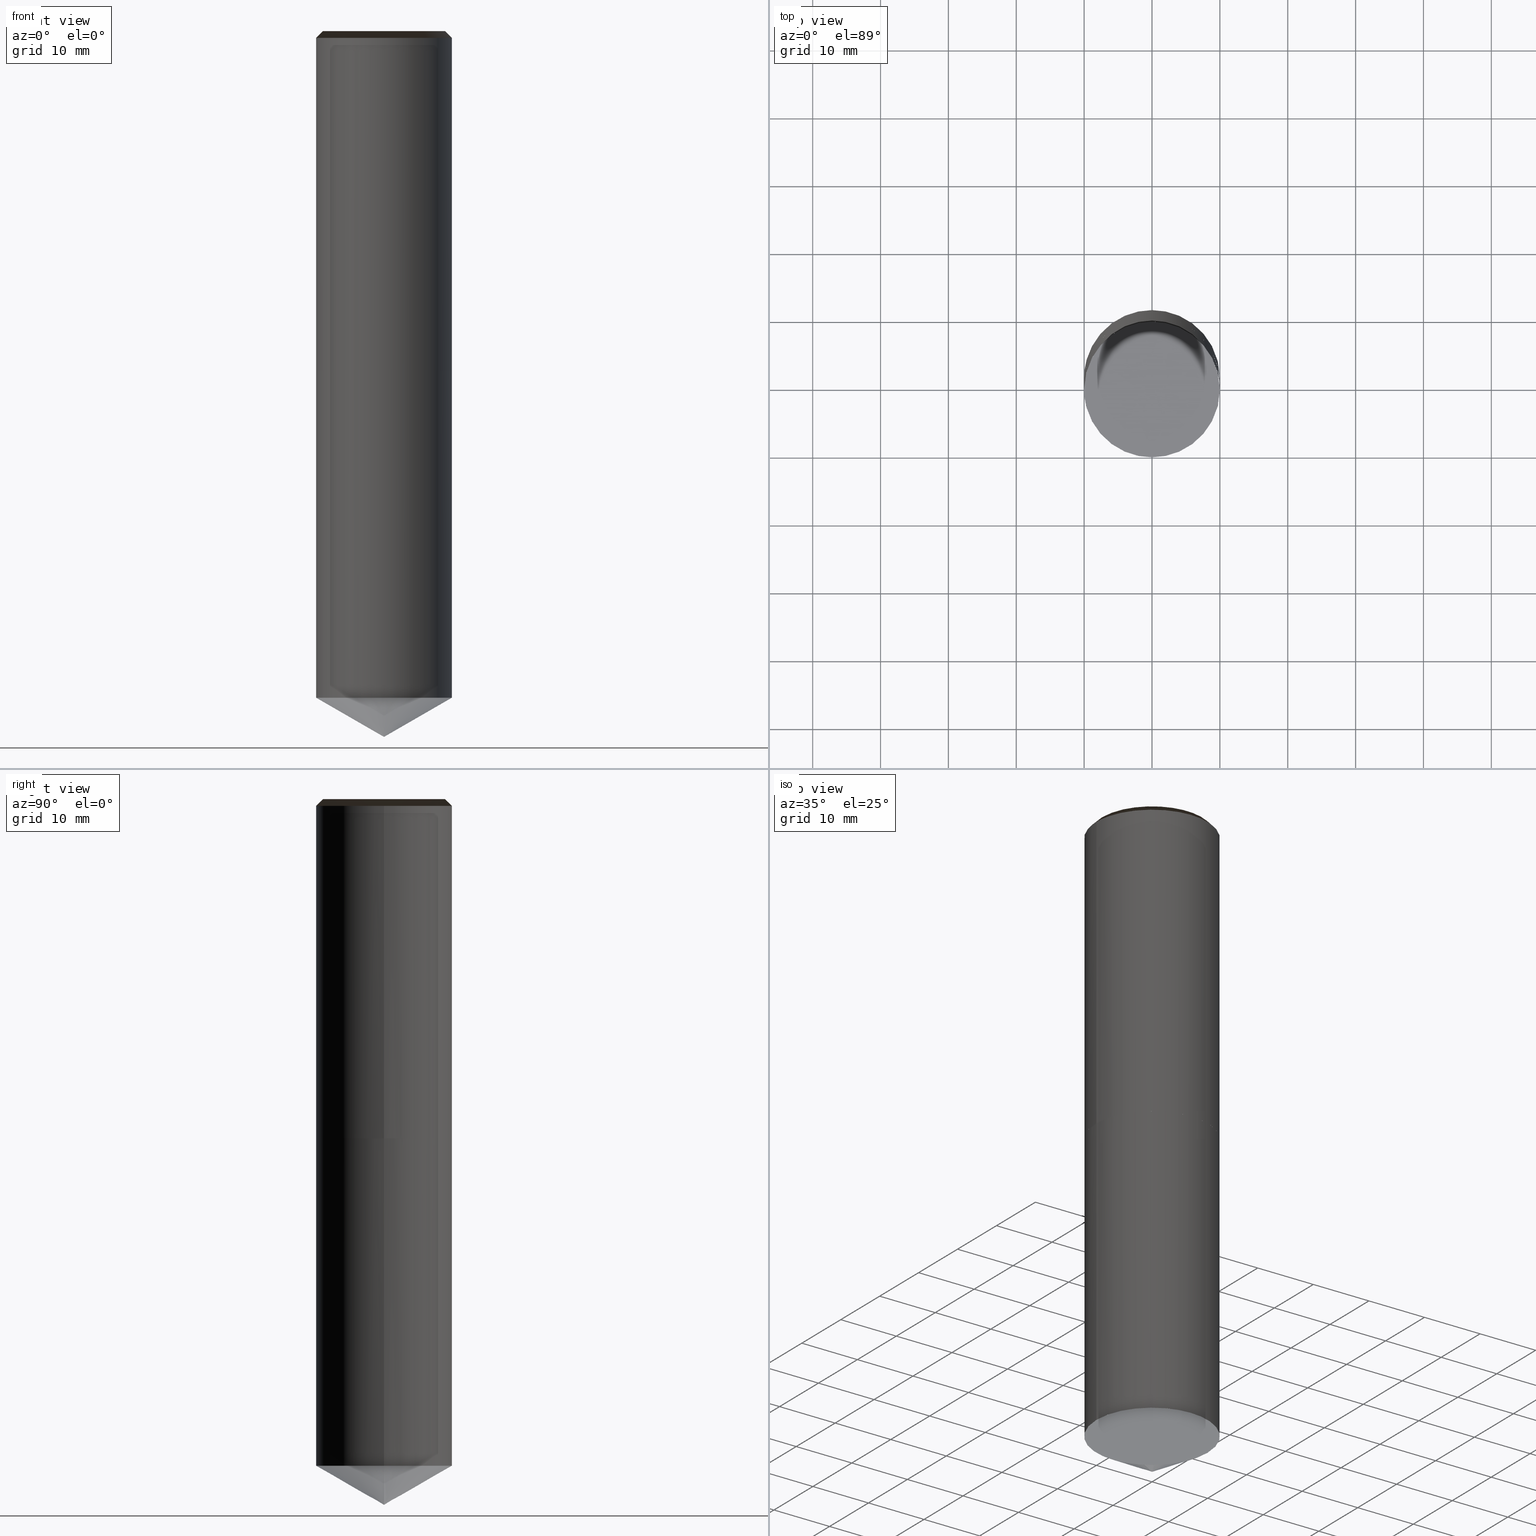
[diagram: canonical four-view strip — front | top / right | iso, engineering-drawing reading convention]
A machine part, canonical four-view strip (front | top / right | iso — engineering-drawing reading convention). The complete STEP part file that produces these views, byte-faithful:
ISO-10303-21;
HEADER;
/* Generated by ISBE GmbH (www.isbe.de) */
/* OPTION: using custom schema-name function */

FILE_DESCRIPTION(
/* description */ (''),
/* implementation_level */ '2;1');

FILE_NAME(
/*name*/ 'eXobj0000_18220F21',
/*time_stamp*/'2024-7-14T21:33:23',
/*author*/ ('ISBE GmbH'),
/*organization*/ ('ISBE GmbH'),
/*preprocessor_version*/ 'STEP IO v1.0',
/*originating_system*/ '',
/*authorisation*/ '');

FILE_SCHEMA (('AUTOMOTIVE_DESIGN'));
ENDSEC;

DATA;
#10=SHAPE_DEFINITION_REPRESENTATION(#11,#57);
#11=PRODUCT_DEFINITION_SHAPE('Document','',#13);
#12=PRODUCT_DEFINITION_CONTEXT('3D Mechanical Parts',#17,'design');
#13=PRODUCT_DEFINITION('A','First version',#14,#12);
#14=PRODUCT_DEFINITION_FORMATION_WITH_SPECIFIED_SOURCE('A','First version',#19,.MADE.);
#15=PRODUCT_RELATED_PRODUCT_CATEGORY('tool','tool',(#19));
#16=APPLICATION_PROTOCOL_DEFINITION('Draft International Standard', 'automotive_design',1999,#17);
#17=APPLICATION_CONTEXT('data for automotive mechanical design processes');
#18=PRODUCT_CONTEXT('3D Mechanical Parts',#17,'mechanical');
#19=PRODUCT('Document','Document','ISBE converted to STEP',(#18));
#20=(
LENGTH_UNIT()
NAMED_UNIT(*)
SI_UNIT(.MILLI.,.METRE.)
);
#21=(
NAMED_UNIT(*)
PLANE_ANGLE_UNIT()
SI_UNIT($,.RADIAN.)
);
#22=DIMENSIONAL_EXPONENTS(0.,0.,0.,0.,0.,0.,0.);
#23=PLANE_ANGLE_MEASURE_WITH_UNIT(PLANE_ANGLE_MEASURE(0.01745329252),#21);
#24=(
CONVERSION_BASED_UNIT('DEGREES',#23)
NAMED_UNIT(#22)
PLANE_ANGLE_UNIT()
);
#25=(
NAMED_UNIT(*)
SI_UNIT($,.STERADIAN.)
SOLID_ANGLE_UNIT()
);
#26=UNCERTAINTY_MEASURE_WITH_UNIT(LENGTH_MEASURE(0.001),#20, 'DISTANCE_ACCURACY_VALUE', 'Maximum model space distance between geometric entities at asserted connectivities');
#27=(
GEOMETRIC_REPRESENTATION_CONTEXT(3)
GLOBAL_UNCERTAINTY_ASSIGNED_CONTEXT((#26))
GLOBAL_UNIT_ASSIGNED_CONTEXT((#25,#24,#20))
REPRESENTATION_CONTEXT('ID1','3D')
);
#28=CARTESIAN_POINT('',(0.0,0.0,0.0));
#29=DIRECTION('',(1.0,0.0,0.0));
#30=DIRECTION('',(0.0,0.0,1.0));
#31=AXIS2_PLACEMENT_3D('',#28,#30,#29);
#32=CARTESIAN_POINT('',(0.0,0.0,0.0));
#33=DIRECTION('',(1.0,0.0,0.0));
#34=DIRECTION('',(0.0,0.0,1.0));
#35=AXIS2_PLACEMENT_3D('',#32,#34,#33);
#36=CARTESIAN_POINT('',(0.0,0.0,0.0));
#37=DIRECTION('',(1.0,0.0,0.0));
#38=DIRECTION('',(0.0,0.0,1.0));
#39=AXIS2_PLACEMENT_3D('',#36,#38,#37);
#40=CARTESIAN_POINT('',(0.0,0.0,0.0));
#41=DIRECTION('',(0.0,0.0,1.0));
#42=DIRECTION('',(1.0,0.0,0.0));
#43=AXIS2_PLACEMENT_3D('MCS',#40,#42,#41);
#44=CARTESIAN_POINT('',(0.0,0.0,50.0));
#45=DIRECTION('',(0.0,0.0,1.0));
#46=DIRECTION('',(1.0,0.0,0.0));
#47=AXIS2_PLACEMENT_3D('PCS',#44,#46,#45);
#48=CARTESIAN_POINT('',(0.0,0.0,-54.0));
#49=DIRECTION('',(0.0,0.0,1.0));
#50=DIRECTION('',(1.0,0.0,0.0));
#51=AXIS2_PLACEMENT_3D('CIP',#48,#50,#49);
#52=CARTESIAN_POINT('',(0.0,-10.0,-54.0));
#53=DIRECTION('',(0.0,0.0,1.0));
#54=DIRECTION('',(1.0,0.0,0.0));
#55=AXIS2_PLACEMENT_3D('CRP',#52,#54,#53);
#57=SHAPE_REPRESENTATION('Document',(#31,#35,#39,#43,#47,#51,#55),#27);
#58=DIRECTION('',(1.0,0.0,0.0));
#59=DIRECTION('',(0.0,0.0,1.0));
#60=CARTESIAN_POINT('',(-0.099994999875,-0.001,-53.942264973081));
#61=CARTESIAN_POINT('',(-0.097954285592,-0.20506122449,-53.824444279009));
#62=CARTESIAN_POINT('',(-0.095913571309,-0.40912244898,-53.706623584936));
#63=CARTESIAN_POINT('',(-0.093872857026,-0.613183673469,-53.588802890864));
#64=CARTESIAN_POINT('',(-0.091832142742,-0.817244897959,-53.470982196792));
#65=CARTESIAN_POINT('',(-0.089791428459,-1.021306122449,-53.353161502719));
#66=CARTESIAN_POINT('',(-0.087750714176,-1.225367346939,-53.235340808647));
#67=CARTESIAN_POINT('',(-0.085709999893,-1.429428571429,-53.117520114575));
#68=CARTESIAN_POINT('',(-0.08366928561,-1.633489795918,-52.999699420502));
#69=CARTESIAN_POINT('',(-0.081628571327,-1.837551020408,-52.88187872643));
#70=CARTESIAN_POINT('',(-0.079587857043,-2.041612244898,-52.764058032358));
#71=CARTESIAN_POINT('',(-0.07754714276,-2.245673469388,-52.646237338285));
#72=CARTESIAN_POINT('',(-0.075506428477,-2.449734693878,-52.528416644213));
#73=CARTESIAN_POINT('',(-0.073465714194,-2.653795918367,-52.410595950141));
#74=CARTESIAN_POINT('',(-0.071424999911,-2.857857142857,-52.292775256068));
#75=CARTESIAN_POINT('',(-0.069384285628,-3.061918367347,-52.174954561996));
#76=CARTESIAN_POINT('',(-0.067343571344,-3.265979591837,-52.057133867924));
#77=CARTESIAN_POINT('',(-0.065302857061,-3.470040816327,-51.939313173851));
#78=CARTESIAN_POINT('',(-0.063262142778,-3.674102040816,-51.821492479779));
#79=CARTESIAN_POINT('',(-0.061221428495,-3.878163265306,-51.703671785707));
#80=CARTESIAN_POINT('',(-0.059180714212,-4.082224489796,-51.585851091634));
#81=CARTESIAN_POINT('',(-0.057139999929,-4.286285714286,-51.468030397562));
#82=CARTESIAN_POINT('',(-0.055099285645,-4.490346938776,-51.35020970349));
#83=CARTESIAN_POINT('',(-0.053058571362,-4.694408163265,-51.232389009417));
#84=CARTESIAN_POINT('',(-0.051017857079,-4.898469387755,-51.114568315345));
#85=CARTESIAN_POINT('',(-0.048977142796,-5.102530612245,-50.996747621273));
#86=CARTESIAN_POINT('',(-0.046936428513,-5.306591836735,-50.8789269272));
#87=CARTESIAN_POINT('',(-0.04489571423,-5.510653061224,-50.761106233128));
#88=CARTESIAN_POINT('',(-0.042854999946,-5.714714285714,-50.643285539056));
#89=CARTESIAN_POINT('',(-0.040814285663,-5.918775510204,-50.525464844983));
#90=CARTESIAN_POINT('',(-0.03877357138,-6.122836734694,-50.407644150911));
#91=CARTESIAN_POINT('',(-0.036732857097,-6.326897959184,-50.289823456839));
#92=CARTESIAN_POINT('',(-0.034692142814,-6.530959183673,-50.172002762766));
#93=CARTESIAN_POINT('',(-0.032651428531,-6.735020408163,-50.054182068694));
#94=CARTESIAN_POINT('',(-0.030610714247,-6.939081632653,-49.936361374622));
#95=CARTESIAN_POINT('',(-0.028569999964,-7.143142857143,-49.818540680549));
#96=CARTESIAN_POINT('',(-0.026529285681,-7.347204081633,-49.700719986477));
#97=CARTESIAN_POINT('',(-0.024488571398,-7.551265306122,-49.582899292405));
#98=CARTESIAN_POINT('',(-0.022447857115,-7.755326530612,-49.465078598332));
#99=CARTESIAN_POINT('',(-0.020407142832,-7.959387755102,-49.34725790426));
#100=CARTESIAN_POINT('',(-0.018366428548,-8.163448979592,-49.229437210188));
#101=CARTESIAN_POINT('',(-0.016325714265,-8.367510204082,-49.111616516115));
#102=CARTESIAN_POINT('',(-0.014284999982,-8.571571428571,-48.993795822043));
#103=CARTESIAN_POINT('',(-0.012244285699,-8.775632653061,-48.875975127971));
#104=CARTESIAN_POINT('',(-0.010203571416,-8.979693877551,-48.758154433898));
#105=CARTESIAN_POINT('',(-0.008162857133,-9.183755102041,-48.640333739826));
#106=CARTESIAN_POINT('',(-0.00612214285,-9.387816326531,-48.522513045754));
#107=CARTESIAN_POINT('',(-0.004081428566,-9.59187755102,-48.404692351681));
#108=CARTESIAN_POINT('',(-0.002040714283,-9.79593877551,-48.286871657609));
#109=CARTESIAN_POINT('',(0.0,-10.0,-48.169050963537));
#110=CARTESIAN_POINT('',(0.001,-0.099994999875,-53.942264973081));
#111=CARTESIAN_POINT('',(0.20506122449,-0.097954285592,-53.824444279009));
#112=CARTESIAN_POINT('',(0.40912244898,-0.095913571309,-53.706623584936));
#113=CARTESIAN_POINT('',(0.613183673469,-0.093872857026,-53.588802890864));
#114=CARTESIAN_POINT('',(0.817244897959,-0.091832142742,-53.470982196792));
#115=CARTESIAN_POINT('',(1.021306122449,-0.089791428459,-53.353161502719));
#116=CARTESIAN_POINT('',(1.225367346939,-0.087750714176,-53.235340808647));
#117=CARTESIAN_POINT('',(1.429428571429,-0.085709999893,-53.117520114575));
#118=CARTESIAN_POINT('',(1.633489795918,-0.08366928561,-52.999699420502));
#119=CARTESIAN_POINT('',(1.837551020408,-0.081628571327,-52.88187872643));
#120=CARTESIAN_POINT('',(2.041612244898,-0.079587857043,-52.764058032358));
#121=CARTESIAN_POINT('',(2.245673469388,-0.07754714276,-52.646237338285));
#122=CARTESIAN_POINT('',(2.449734693878,-0.075506428477,-52.528416644213));
#123=CARTESIAN_POINT('',(2.653795918367,-0.073465714194,-52.410595950141));
#124=CARTESIAN_POINT('',(2.857857142857,-0.071424999911,-52.292775256068));
#125=CARTESIAN_POINT('',(3.061918367347,-0.069384285628,-52.174954561996));
#126=CARTESIAN_POINT('',(3.265979591837,-0.067343571344,-52.057133867924));
#127=CARTESIAN_POINT('',(3.470040816327,-0.065302857061,-51.939313173851));
#128=CARTESIAN_POINT('',(3.674102040816,-0.063262142778,-51.821492479779));
#129=CARTESIAN_POINT('',(3.878163265306,-0.061221428495,-51.703671785707));
#130=CARTESIAN_POINT('',(4.082224489796,-0.059180714212,-51.585851091634));
#131=CARTESIAN_POINT('',(4.286285714286,-0.057139999929,-51.468030397562));
#132=CARTESIAN_POINT('',(4.490346938776,-0.055099285645,-51.35020970349));
#133=CARTESIAN_POINT('',(4.694408163265,-0.053058571362,-51.232389009417));
#134=CARTESIAN_POINT('',(4.898469387755,-0.051017857079,-51.114568315345));
#135=CARTESIAN_POINT('',(5.102530612245,-0.048977142796,-50.996747621273));
#136=CARTESIAN_POINT('',(5.306591836735,-0.046936428513,-50.8789269272));
#137=CARTESIAN_POINT('',(5.510653061224,-0.04489571423,-50.761106233128));
#138=CARTESIAN_POINT('',(5.714714285714,-0.042854999946,-50.643285539056));
#139=CARTESIAN_POINT('',(5.918775510204,-0.040814285663,-50.525464844983));
#140=CARTESIAN_POINT('',(6.122836734694,-0.03877357138,-50.407644150911));
#141=CARTESIAN_POINT('',(6.326897959184,-0.036732857097,-50.289823456839));
#142=CARTESIAN_POINT('',(6.530959183673,-0.034692142814,-50.172002762766));
#143=CARTESIAN_POINT('',(6.735020408163,-0.032651428531,-50.054182068694));
#144=CARTESIAN_POINT('',(6.939081632653,-0.030610714247,-49.936361374622));
#145=CARTESIAN_POINT('',(7.143142857143,-0.028569999964,-49.818540680549));
#146=CARTESIAN_POINT('',(7.347204081633,-0.026529285681,-49.700719986477));
#147=CARTESIAN_POINT('',(7.551265306122,-0.024488571398,-49.582899292405));
#148=CARTESIAN_POINT('',(7.755326530612,-0.022447857115,-49.465078598332));
#149=CARTESIAN_POINT('',(7.959387755102,-0.020407142832,-49.34725790426));
#150=CARTESIAN_POINT('',(8.163448979592,-0.018366428548,-49.229437210188));
#151=CARTESIAN_POINT('',(8.367510204082,-0.016325714265,-49.111616516115));
#152=CARTESIAN_POINT('',(8.571571428571,-0.014284999982,-48.993795822043));
#153=CARTESIAN_POINT('',(8.775632653061,-0.012244285699,-48.875975127971));
#154=CARTESIAN_POINT('',(8.979693877551,-0.010203571416,-48.758154433898));
#155=CARTESIAN_POINT('',(9.183755102041,-0.008162857133,-48.640333739826));
#156=CARTESIAN_POINT('',(9.387816326531,-0.006122142849,-48.522513045754));
#157=CARTESIAN_POINT('',(9.59187755102,-0.004081428566,-48.404692351681));
#158=CARTESIAN_POINT('',(9.79593877551,-0.002040714283,-48.286871657609));
#159=CARTESIAN_POINT('',(10.0,0.0,-48.169050963537));
#160=CARTESIAN_POINT('',(0.099994999875,0.001,-53.942264973081));
#161=CARTESIAN_POINT('',(0.097954285592,0.20506122449,-53.824444279009));
#162=CARTESIAN_POINT('',(0.095913571309,0.40912244898,-53.706623584936));
#163=CARTESIAN_POINT('',(0.093872857026,0.613183673469,-53.588802890864));
#164=CARTESIAN_POINT('',(0.091832142742,0.817244897959,-53.470982196792));
#165=CARTESIAN_POINT('',(0.089791428459,1.021306122449,-53.353161502719));
#166=CARTESIAN_POINT('',(0.087750714176,1.225367346939,-53.235340808647));
#167=CARTESIAN_POINT('',(0.085709999893,1.429428571429,-53.117520114575));
#168=CARTESIAN_POINT('',(0.08366928561,1.633489795918,-52.999699420502));
#169=CARTESIAN_POINT('',(0.081628571327,1.837551020408,-52.88187872643));
#170=CARTESIAN_POINT('',(0.079587857043,2.041612244898,-52.764058032358));
#171=CARTESIAN_POINT('',(0.07754714276,2.245673469388,-52.646237338285));
#172=CARTESIAN_POINT('',(0.075506428477,2.449734693878,-52.528416644213));
#173=CARTESIAN_POINT('',(0.073465714194,2.653795918367,-52.410595950141));
#174=CARTESIAN_POINT('',(0.071424999911,2.857857142857,-52.292775256068));
#175=CARTESIAN_POINT('',(0.069384285628,3.061918367347,-52.174954561996));
#176=CARTESIAN_POINT('',(0.067343571344,3.265979591837,-52.057133867924));
#177=CARTESIAN_POINT('',(0.065302857061,3.470040816327,-51.939313173851));
#178=CARTESIAN_POINT('',(0.063262142778,3.674102040816,-51.821492479779));
#179=CARTESIAN_POINT('',(0.061221428495,3.878163265306,-51.703671785707));
#180=CARTESIAN_POINT('',(0.059180714212,4.082224489796,-51.585851091634));
#181=CARTESIAN_POINT('',(0.057139999929,4.286285714286,-51.468030397562));
#182=CARTESIAN_POINT('',(0.055099285645,4.490346938776,-51.35020970349));
#183=CARTESIAN_POINT('',(0.053058571362,4.694408163265,-51.232389009417));
#184=CARTESIAN_POINT('',(0.051017857079,4.898469387755,-51.114568315345));
#185=CARTESIAN_POINT('',(0.048977142796,5.102530612245,-50.996747621273));
#186=CARTESIAN_POINT('',(0.046936428513,5.306591836735,-50.8789269272));
#187=CARTESIAN_POINT('',(0.04489571423,5.510653061224,-50.761106233128));
#188=CARTESIAN_POINT('',(0.042854999946,5.714714285714,-50.643285539056));
#189=CARTESIAN_POINT('',(0.040814285663,5.918775510204,-50.525464844983));
#190=CARTESIAN_POINT('',(0.03877357138,6.122836734694,-50.407644150911));
#191=CARTESIAN_POINT('',(0.036732857097,6.326897959184,-50.289823456839));
#192=CARTESIAN_POINT('',(0.034692142814,6.530959183673,-50.172002762766));
#193=CARTESIAN_POINT('',(0.032651428531,6.735020408163,-50.054182068694));
#194=CARTESIAN_POINT('',(0.030610714247,6.939081632653,-49.936361374622));
#195=CARTESIAN_POINT('',(0.028569999964,7.143142857143,-49.818540680549));
#196=CARTESIAN_POINT('',(0.026529285681,7.347204081633,-49.700719986477));
#197=CARTESIAN_POINT('',(0.024488571398,7.551265306122,-49.582899292405));
#198=CARTESIAN_POINT('',(0.022447857115,7.755326530612,-49.465078598332));
#199=CARTESIAN_POINT('',(0.020407142832,7.959387755102,-49.34725790426));
#200=CARTESIAN_POINT('',(0.018366428549,8.163448979592,-49.229437210188));
#201=CARTESIAN_POINT('',(0.016325714265,8.367510204082,-49.111616516115));
#202=CARTESIAN_POINT('',(0.014284999982,8.571571428571,-48.993795822043));
#203=CARTESIAN_POINT('',(0.012244285699,8.775632653061,-48.875975127971));
#204=CARTESIAN_POINT('',(0.010203571416,8.979693877551,-48.758154433898));
#205=CARTESIAN_POINT('',(0.008162857133,9.183755102041,-48.640333739826));
#206=CARTESIAN_POINT('',(0.00612214285,9.387816326531,-48.522513045754));
#207=CARTESIAN_POINT('',(0.004081428566,9.59187755102,-48.404692351681));
#208=CARTESIAN_POINT('',(0.002040714283,9.79593877551,-48.286871657609));
#209=CARTESIAN_POINT('',(0.0,10.0,-48.169050963537));
#210=CARTESIAN_POINT('',(-0.001,0.099994999875,-53.942264973081));
#211=CARTESIAN_POINT('',(-0.20506122449,0.097954285592,-53.824444279009));
#212=CARTESIAN_POINT('',(-0.40912244898,0.095913571309,-53.706623584936));
#213=CARTESIAN_POINT('',(-0.613183673469,0.093872857026,-53.588802890864));
#214=CARTESIAN_POINT('',(-0.817244897959,0.091832142742,-53.470982196792));
#215=CARTESIAN_POINT('',(-1.021306122449,0.089791428459,-53.353161502719));
#216=CARTESIAN_POINT('',(-1.225367346939,0.087750714176,-53.235340808647));
#217=CARTESIAN_POINT('',(-1.429428571429,0.085709999893,-53.117520114575));
#218=CARTESIAN_POINT('',(-1.633489795918,0.08366928561,-52.999699420502));
#219=CARTESIAN_POINT('',(-1.837551020408,0.081628571327,-52.88187872643));
#220=CARTESIAN_POINT('',(-2.041612244898,0.079587857043,-52.764058032358));
#221=CARTESIAN_POINT('',(-2.245673469388,0.07754714276,-52.646237338285));
#222=CARTESIAN_POINT('',(-2.449734693878,0.075506428477,-52.528416644213));
#223=CARTESIAN_POINT('',(-2.653795918367,0.073465714194,-52.410595950141));
#224=CARTESIAN_POINT('',(-2.857857142857,0.071424999911,-52.292775256068));
#225=CARTESIAN_POINT('',(-3.061918367347,0.069384285628,-52.174954561996));
#226=CARTESIAN_POINT('',(-3.265979591837,0.067343571344,-52.057133867924));
#227=CARTESIAN_POINT('',(-3.470040816327,0.065302857061,-51.939313173851));
#228=CARTESIAN_POINT('',(-3.674102040816,0.063262142778,-51.821492479779));
#229=CARTESIAN_POINT('',(-3.878163265306,0.061221428495,-51.703671785707));
#230=CARTESIAN_POINT('',(-4.082224489796,0.059180714212,-51.585851091634));
#231=CARTESIAN_POINT('',(-4.286285714286,0.057139999929,-51.468030397562));
#232=CARTESIAN_POINT('',(-4.490346938776,0.055099285645,-51.35020970349));
#233=CARTESIAN_POINT('',(-4.694408163265,0.053058571362,-51.232389009417));
#234=CARTESIAN_POINT('',(-4.898469387755,0.051017857079,-51.114568315345));
#235=CARTESIAN_POINT('',(-5.102530612245,0.048977142796,-50.996747621273));
#236=CARTESIAN_POINT('',(-5.306591836735,0.046936428513,-50.8789269272));
#237=CARTESIAN_POINT('',(-5.510653061224,0.04489571423,-50.761106233128));
#238=CARTESIAN_POINT('',(-5.714714285714,0.042854999946,-50.643285539056));
#239=CARTESIAN_POINT('',(-5.918775510204,0.040814285663,-50.525464844983));
#240=CARTESIAN_POINT('',(-6.122836734694,0.03877357138,-50.407644150911));
#241=CARTESIAN_POINT('',(-6.326897959184,0.036732857097,-50.289823456839));
#242=CARTESIAN_POINT('',(-6.530959183673,0.034692142814,-50.172002762766));
#243=CARTESIAN_POINT('',(-6.735020408163,0.032651428531,-50.054182068694));
#244=CARTESIAN_POINT('',(-6.939081632653,0.030610714247,-49.936361374622));
#245=CARTESIAN_POINT('',(-7.143142857143,0.028569999964,-49.818540680549));
#246=CARTESIAN_POINT('',(-7.347204081633,0.026529285681,-49.700719986477));
#247=CARTESIAN_POINT('',(-7.551265306122,0.024488571398,-49.582899292405));
#248=CARTESIAN_POINT('',(-7.755326530612,0.022447857115,-49.465078598332));
#249=CARTESIAN_POINT('',(-7.959387755102,0.020407142832,-49.34725790426));
#250=CARTESIAN_POINT('',(-8.163448979592,0.018366428548,-49.229437210188));
#251=CARTESIAN_POINT('',(-8.367510204082,0.016325714265,-49.111616516115));
#252=CARTESIAN_POINT('',(-8.571571428571,0.014284999982,-48.993795822043));
#253=CARTESIAN_POINT('',(-8.775632653061,0.012244285699,-48.875975127971));
#254=CARTESIAN_POINT('',(-8.979693877551,0.010203571416,-48.758154433898));
#255=CARTESIAN_POINT('',(-9.183755102041,0.008162857133,-48.640333739826));
#256=CARTESIAN_POINT('',(-9.387816326531,0.00612214285,-48.522513045754));
#257=CARTESIAN_POINT('',(-9.59187755102,0.004081428566,-48.404692351681));
#258=CARTESIAN_POINT('',(-9.79593877551,0.002040714283,-48.286871657609));
#259=CARTESIAN_POINT('',(-10.0,-0.0,-48.169050963537));
#260=CARTESIAN_POINT('',(0.0,0.0,-54.0));
#261=CARTESIAN_POINT('',(10.0,0.0,-48.226497308104));
#262=CARTESIAN_POINT('',(10.0,10.0,-48.226497308104));
#263=CARTESIAN_POINT('',(0.0,10.0,-48.226497308104));
#264=CARTESIAN_POINT('',(-10.0,10.0,-48.226497308104));
#265=CARTESIAN_POINT('',(-10.0,0.0,-48.226497308104));
#266=CARTESIAN_POINT('',(10.0,0.0,-48.225));
#267=CARTESIAN_POINT('',(10.0,10.0,-48.225));
#268=CARTESIAN_POINT('',(0.0,10.0,-48.225));
#269=CARTESIAN_POINT('',(-10.0,10.0,-48.225));
#270=CARTESIAN_POINT('',(-10.0,0.0,-48.225));
#271=CARTESIAN_POINT('',(0.0,0.0,-48.225));
#272=CARTESIAN_POINT('',(-10.0,-10.0,-48.226497308104));
#273=CARTESIAN_POINT('',(0.0,-10.0,-48.226497308104));
#274=CARTESIAN_POINT('',(10.0,-10.0,-48.226497308104));
#275=CARTESIAN_POINT('',(-10.0,-10.0,-48.225));
#276=CARTESIAN_POINT('',(0.0,-10.0,-48.225));
#277=CARTESIAN_POINT('',(10.0,-10.0,-48.225));
#278=CARTESIAN_POINT('',(10.0,0.0,0.0));
#279=CARTESIAN_POINT('',(10.0,10.0,0.0));
#280=CARTESIAN_POINT('',(0.0,10.0,0.0));
#281=CARTESIAN_POINT('',(-10.0,10.0,0.0));
#282=CARTESIAN_POINT('',(-10.0,0.0,0.0));
#283=CARTESIAN_POINT('',(10.0,0.0,49.0));
#284=CARTESIAN_POINT('',(10.0,10.0,49.0));
#285=CARTESIAN_POINT('',(0.0,10.0,49.0));
#286=CARTESIAN_POINT('',(-10.0,10.0,49.0));
#287=CARTESIAN_POINT('',(-10.0,0.0,49.0));
#288=CARTESIAN_POINT('',(9.0,0.0,50.0));
#289=CARTESIAN_POINT('',(9.0,9.0,50.0));
#290=CARTESIAN_POINT('',(0.0,9.0,50.0));
#291=CARTESIAN_POINT('',(-9.0,9.0,50.0));
#292=CARTESIAN_POINT('',(-9.0,0.0,50.0));
#293=CARTESIAN_POINT('',(0.0,0.0,50.0));
#294=CARTESIAN_POINT('',(-10.0,-10.0,0.0));
#295=CARTESIAN_POINT('',(0.0,-10.0,0.0));
#296=CARTESIAN_POINT('',(10.0,-10.0,0.0));
#297=CARTESIAN_POINT('',(-10.0,-10.0,49.0));
#298=CARTESIAN_POINT('',(0.0,-10.0,49.0));
#299=CARTESIAN_POINT('',(10.0,-10.0,49.0));
#300=CARTESIAN_POINT('',(-9.0,-9.0,50.0));
#301=CARTESIAN_POINT('',(0.0,-9.0,50.0));
#302=CARTESIAN_POINT('',(9.0,-9.0,50.0));
#303=(
BOUNDED_CURVE()
B_SPLINE_CURVE(1,(#60,#61,#62,#63,#64,#65,#66,#67,#68,#69,#70,#71,#72,#73,#74,#75,#76,#77,#78,#79,#80,#81,#82,#83,#84,#85,#86,#87,#88,#89,#90,#91,#92,#93,#94,#95,#96,#97,#98,#99,#100,#101,#102,#103,#104,#105,#106,#107,#108,#109),.UNSPECIFIED.,.F.,.F.)
B_SPLINE_CURVE_WITH_KNOTS((2,1,1,1,1,1,1,1,1,1,1,1,1,1,1,1,1,1,1,1,1,1,1,1,1,1,1,1,1,1,1,1,1,1,1,1,1,1,1,1,1,1,1,1,1,1,1,1,1,2),
(0.0,0.020408163265,0.040816326531,0.061224489796,0.081632653061,0.102040816327,0.122448979592,0.142857142857,0.163265306122,0.183673469388,0.204081632653,0.224489795918,0.244897959184,0.265306122449,0.285714285714,0.30612244898,0.326530612245,0.34693877551,0.367346938776,0.387755102041,0.408163265306,0.428571428571,0.448979591837,0.469387755102,0.489795918367,0.510204081633,0.530612244898,0.551020408163,0.571428571429,0.591836734694,0.612244897959,0.632653061224,0.65306122449,0.673469387755,0.69387755102,0.714285714286,0.734693877551,0.755102040816,0.775510204082,0.795918367347,0.816326530612,0.836734693878,0.857142857143,0.877551020408,0.897959183673,0.918367346939,0.938775510204,0.959183673469,0.979591836735,1.0),.UNSPECIFIED.)
CURVE()
GEOMETRIC_REPRESENTATION_ITEM()
RATIONAL_B_SPLINE_CURVE((1.0,1.0,1.0,1.0,1.0,1.0,1.0,1.0,1.0,1.0,1.0,1.0,1.0,1.0,1.0,1.0,1.0,1.0,1.0,1.0,1.0,1.0,1.0,1.0,1.0,1.0,1.0,1.0,1.0,1.0,1.0,1.0,1.0,1.0,1.0,1.0,1.0,1.0,1.0,1.0,1.0,1.0,1.0,1.0,1.0,1.0,1.0,1.0,1.0,1.0))
REPRESENTATION_ITEM('')
);
#304=(
BOUNDED_CURVE()
B_SPLINE_CURVE(1,(#110,#111,#112,#113,#114,#115,#116,#117,#118,#119,#120,#121,#122,#123,#124,#125,#126,#127,#128,#129,#130,#131,#132,#133,#134,#135,#136,#137,#138,#139,#140,#141,#142,#143,#144,#145,#146,#147,#148,#149,#150,#151,#152,#153,#154,#155,#156,#157,#158,#159),.UNSPECIFIED.,.F.,.F.)
B_SPLINE_CURVE_WITH_KNOTS((2,1,1,1,1,1,1,1,1,1,1,1,1,1,1,1,1,1,1,1,1,1,1,1,1,1,1,1,1,1,1,1,1,1,1,1,1,1,1,1,1,1,1,1,1,1,1,1,1,2),
(0.0,0.020408163265,0.040816326531,0.061224489796,0.081632653061,0.102040816327,0.122448979592,0.142857142857,0.163265306122,0.183673469388,0.204081632653,0.224489795918,0.244897959184,0.265306122449,0.285714285714,0.30612244898,0.326530612245,0.34693877551,0.367346938776,0.387755102041,0.408163265306,0.428571428571,0.448979591837,0.469387755102,0.489795918367,0.510204081633,0.530612244898,0.551020408163,0.571428571429,0.591836734694,0.612244897959,0.632653061224,0.65306122449,0.673469387755,0.69387755102,0.714285714286,0.734693877551,0.755102040816,0.775510204082,0.795918367347,0.816326530612,0.836734693878,0.857142857143,0.877551020408,0.897959183673,0.918367346939,0.938775510204,0.959183673469,0.979591836735,1.0),.UNSPECIFIED.)
CURVE()
GEOMETRIC_REPRESENTATION_ITEM()
RATIONAL_B_SPLINE_CURVE((1.0,1.0,1.0,1.0,1.0,1.0,1.0,1.0,1.0,1.0,1.0,1.0,1.0,1.0,1.0,1.0,1.0,1.0,1.0,1.0,1.0,1.0,1.0,1.0,1.0,1.0,1.0,1.0,1.0,1.0,1.0,1.0,1.0,1.0,1.0,1.0,1.0,1.0,1.0,1.0,1.0,1.0,1.0,1.0,1.0,1.0,1.0,1.0,1.0,1.0))
REPRESENTATION_ITEM('')
);
#305=(
BOUNDED_CURVE()
B_SPLINE_CURVE(1,(#160,#161,#162,#163,#164,#165,#166,#167,#168,#169,#170,#171,#172,#173,#174,#175,#176,#177,#178,#179,#180,#181,#182,#183,#184,#185,#186,#187,#188,#189,#190,#191,#192,#193,#194,#195,#196,#197,#198,#199,#200,#201,#202,#203,#204,#205,#206,#207,#208,#209),.UNSPECIFIED.,.F.,.F.)
B_SPLINE_CURVE_WITH_KNOTS((2,1,1,1,1,1,1,1,1,1,1,1,1,1,1,1,1,1,1,1,1,1,1,1,1,1,1,1,1,1,1,1,1,1,1,1,1,1,1,1,1,1,1,1,1,1,1,1,1,2),
(0.0,0.020408163265,0.040816326531,0.061224489796,0.081632653061,0.102040816327,0.122448979592,0.142857142857,0.163265306122,0.183673469388,0.204081632653,0.224489795918,0.244897959184,0.265306122449,0.285714285714,0.30612244898,0.326530612245,0.34693877551,0.367346938776,0.387755102041,0.408163265306,0.428571428571,0.448979591837,0.469387755102,0.489795918367,0.510204081633,0.530612244898,0.551020408163,0.571428571429,0.591836734694,0.612244897959,0.632653061224,0.65306122449,0.673469387755,0.69387755102,0.714285714286,0.734693877551,0.755102040816,0.775510204082,0.795918367347,0.816326530612,0.836734693878,0.857142857143,0.877551020408,0.897959183673,0.918367346939,0.938775510204,0.959183673469,0.979591836735,1.0),.UNSPECIFIED.)
CURVE()
GEOMETRIC_REPRESENTATION_ITEM()
RATIONAL_B_SPLINE_CURVE((1.0,1.0,1.0,1.0,1.0,1.0,1.0,1.0,1.0,1.0,1.0,1.0,1.0,1.0,1.0,1.0,1.0,1.0,1.0,1.0,1.0,1.0,1.0,1.0,1.0,1.0,1.0,1.0,1.0,1.0,1.0,1.0,1.0,1.0,1.0,1.0,1.0,1.0,1.0,1.0,1.0,1.0,1.0,1.0,1.0,1.0,1.0,1.0,1.0,1.0))
REPRESENTATION_ITEM('')
);
#306=(
BOUNDED_CURVE()
B_SPLINE_CURVE(1,(#210,#211,#212,#213,#214,#215,#216,#217,#218,#219,#220,#221,#222,#223,#224,#225,#226,#227,#228,#229,#230,#231,#232,#233,#234,#235,#236,#237,#238,#239,#240,#241,#242,#243,#244,#245,#246,#247,#248,#249,#250,#251,#252,#253,#254,#255,#256,#257,#258,#259),.UNSPECIFIED.,.F.,.F.)
B_SPLINE_CURVE_WITH_KNOTS((2,1,1,1,1,1,1,1,1,1,1,1,1,1,1,1,1,1,1,1,1,1,1,1,1,1,1,1,1,1,1,1,1,1,1,1,1,1,1,1,1,1,1,1,1,1,1,1,1,2),
(0.0,0.020408163265,0.040816326531,0.061224489796,0.081632653061,0.102040816327,0.122448979592,0.142857142857,0.163265306122,0.183673469388,0.204081632653,0.224489795918,0.244897959184,0.265306122449,0.285714285714,0.30612244898,0.326530612245,0.34693877551,0.367346938776,0.387755102041,0.408163265306,0.428571428571,0.448979591837,0.469387755102,0.489795918367,0.510204081633,0.530612244898,0.551020408163,0.571428571429,0.591836734694,0.612244897959,0.632653061224,0.65306122449,0.673469387755,0.69387755102,0.714285714286,0.734693877551,0.755102040816,0.775510204082,0.795918367347,0.816326530612,0.836734693878,0.857142857143,0.877551020408,0.897959183673,0.918367346939,0.938775510204,0.959183673469,0.979591836735,1.0),.UNSPECIFIED.)
CURVE()
GEOMETRIC_REPRESENTATION_ITEM()
RATIONAL_B_SPLINE_CURVE((1.0,1.0,1.0,1.0,1.0,1.0,1.0,1.0,1.0,1.0,1.0,1.0,1.0,1.0,1.0,1.0,1.0,1.0,1.0,1.0,1.0,1.0,1.0,1.0,1.0,1.0,1.0,1.0,1.0,1.0,1.0,1.0,1.0,1.0,1.0,1.0,1.0,1.0,1.0,1.0,1.0,1.0,1.0,1.0,1.0,1.0,1.0,1.0,1.0,1.0))
REPRESENTATION_ITEM('')
);
#307=SHAPE_REPRESENTATION_RELATIONSHIP('','',#57,#308);
#308=GEOMETRICALLY_BOUNDED_WIREFRAME_SHAPE_REPRESENTATION('Curves',(#309,#31),#27);
#309=GEOMETRIC_CURVE_SET('CurveSet',(#303,#304,#305,#306));
#310=(
BOUNDED_SURFACE()
B_SPLINE_SURFACE(1,2,(
(#260,#260,#260,#260,#260),
(#261,#262,#263,#264,#265)
), .UNSPECIFIED.,.F.,.F.,.F.)
B_SPLINE_SURFACE_WITH_KNOTS((2,2),(3,2,3),(
0.0,1.0),(
0.0,0.5,1.0), .UNSPECIFIED.)
GEOMETRIC_REPRESENTATION_ITEM()
RATIONAL_B_SPLINE_SURFACE(((1.0,0.707106781187,1.0,0.707106781187,1.0),
(1.0,0.707106781187,1.0,0.707106781187,1.0)
))
REPRESENTATION_ITEM('')
SURFACE()
);
#311=(
BOUNDED_CURVE()
B_SPLINE_CURVE(2,(#261,#262,#263,#264,#265),.UNSPECIFIED.,.F.,.F.)
B_SPLINE_CURVE_WITH_KNOTS((3,2,3),
(0.0,0.5,1.0),.UNSPECIFIED.)
CURVE()
GEOMETRIC_REPRESENTATION_ITEM()
RATIONAL_B_SPLINE_CURVE((1.0,0.707106781187,1.0,0.707106781187,1.0))
REPRESENTATION_ITEM('')
);
#312=(
BOUNDED_CURVE()
B_SPLINE_CURVE(1,(#265,#260),.UNSPECIFIED.,.F.,.F.)
B_SPLINE_CURVE_WITH_KNOTS((2,2),
(0.0,1.0),.UNSPECIFIED.)
CURVE()
GEOMETRIC_REPRESENTATION_ITEM()
RATIONAL_B_SPLINE_CURVE((1.0,1.0))
REPRESENTATION_ITEM('')
);
#313=(
BOUNDED_CURVE()
B_SPLINE_CURVE(1,(#260,#261),.UNSPECIFIED.,.F.,.F.)
B_SPLINE_CURVE_WITH_KNOTS((2,2),
(0.0,1.0),.UNSPECIFIED.)
CURVE()
GEOMETRIC_REPRESENTATION_ITEM()
RATIONAL_B_SPLINE_CURVE((1.0,1.0))
REPRESENTATION_ITEM('')
);
#314=VERTEX_POINT('',#260);
#315=VERTEX_POINT('',#261);
#316=VERTEX_POINT('',#265);
#317=EDGE_CURVE('',#315,#316,#311,.T.);
#318=EDGE_CURVE('',#316,#314,#312,.T.);
#319=EDGE_CURVE('',#314,#315,#313,.T.);
#320=ORIENTED_EDGE('',*,*,#317,.T.);
#321=ORIENTED_EDGE('',*,*,#318,.T.);
#322=ORIENTED_EDGE('',*,*,#319,.T.);
#323=EDGE_LOOP('',(#320,#321,#322));
#324=FACE_OUTER_BOUND('',#323,.T.);
#325=ADVANCED_FACE('',(#324),#310,.T.);
#326=(
BOUNDED_SURFACE()
B_SPLINE_SURFACE(1,2,(
(#261,#262,#263,#264,#265),
(#266,#267,#268,#269,#270)
), .UNSPECIFIED.,.F.,.F.,.F.)
B_SPLINE_SURFACE_WITH_KNOTS((2,2),(3,2,3),(
0.0,1.0),(
0.0,0.5,1.0), .UNSPECIFIED.)
GEOMETRIC_REPRESENTATION_ITEM()
RATIONAL_B_SPLINE_SURFACE(((1.0,0.707106781187,1.0,0.707106781187,1.0),
(1.0,0.707106781187,1.0,0.707106781187,1.0)
))
REPRESENTATION_ITEM('')
SURFACE()
);
#327=(
BOUNDED_CURVE()
B_SPLINE_CURVE(2,(#266,#267,#268,#269,#270),.UNSPECIFIED.,.F.,.F.)
B_SPLINE_CURVE_WITH_KNOTS((3,2,3),
(0.0,0.5,1.0),.UNSPECIFIED.)
CURVE()
GEOMETRIC_REPRESENTATION_ITEM()
RATIONAL_B_SPLINE_CURVE((1.0,0.707106781187,1.0,0.707106781187,1.0))
REPRESENTATION_ITEM('')
);
#328=(
BOUNDED_CURVE()
B_SPLINE_CURVE(1,(#270,#265),.UNSPECIFIED.,.F.,.F.)
B_SPLINE_CURVE_WITH_KNOTS((2,2),
(0.0,1.0),.UNSPECIFIED.)
CURVE()
GEOMETRIC_REPRESENTATION_ITEM()
RATIONAL_B_SPLINE_CURVE((1.0,1.0))
REPRESENTATION_ITEM('')
);
#329=(
BOUNDED_CURVE()
B_SPLINE_CURVE(2,(#265,#264,#263,#262,#261),.UNSPECIFIED.,.F.,.F.)
B_SPLINE_CURVE_WITH_KNOTS((3,2,3),
(0.0,0.5,1.0),.UNSPECIFIED.)
CURVE()
GEOMETRIC_REPRESENTATION_ITEM()
RATIONAL_B_SPLINE_CURVE((1.0,0.707106781187,1.0,0.707106781187,1.0))
REPRESENTATION_ITEM('')
);
#330=(
BOUNDED_CURVE()
B_SPLINE_CURVE(1,(#261,#266),.UNSPECIFIED.,.F.,.F.)
B_SPLINE_CURVE_WITH_KNOTS((2,2),
(0.0,1.0),.UNSPECIFIED.)
CURVE()
GEOMETRIC_REPRESENTATION_ITEM()
RATIONAL_B_SPLINE_CURVE((1.0,1.0))
REPRESENTATION_ITEM('')
);
#331=VERTEX_POINT('',#261);
#332=VERTEX_POINT('',#265);
#333=VERTEX_POINT('',#266);
#334=VERTEX_POINT('',#270);
#335=EDGE_CURVE('',#333,#334,#327,.T.);
#336=EDGE_CURVE('',#334,#332,#328,.T.);
#337=EDGE_CURVE('',#332,#331,#329,.T.);
#338=EDGE_CURVE('',#331,#333,#330,.T.);
#339=ORIENTED_EDGE('',*,*,#335,.T.);
#340=ORIENTED_EDGE('',*,*,#336,.T.);
#341=ORIENTED_EDGE('',*,*,#337,.T.);
#342=ORIENTED_EDGE('',*,*,#338,.T.);
#343=EDGE_LOOP('',(#339,#340,#341,#342));
#344=FACE_OUTER_BOUND('',#343,.T.);
#345=ADVANCED_FACE('',(#344),#326,.T.);
#346=(
BOUNDED_SURFACE()
B_SPLINE_SURFACE(1,2,(
(#266,#267,#268,#269,#270),
(#271,#271,#271,#271,#271)
), .UNSPECIFIED.,.F.,.F.,.F.)
B_SPLINE_SURFACE_WITH_KNOTS((2,2),(3,2,3),(
0.0,1.0),(
0.0,0.5,1.0), .UNSPECIFIED.)
GEOMETRIC_REPRESENTATION_ITEM()
RATIONAL_B_SPLINE_SURFACE(((1.0,0.707106781187,1.0,0.707106781187,1.0),
(1.0,0.707106781187,1.0,0.707106781187,1.0)
))
REPRESENTATION_ITEM('')
SURFACE()
);
#347=(
BOUNDED_CURVE()
B_SPLINE_CURVE(1,(#271,#266),.UNSPECIFIED.,.F.,.F.)
B_SPLINE_CURVE_WITH_KNOTS((2,2),
(0.0,1.0),.UNSPECIFIED.)
CURVE()
GEOMETRIC_REPRESENTATION_ITEM()
RATIONAL_B_SPLINE_CURVE((1.0,1.0))
REPRESENTATION_ITEM('')
);
#348=(
BOUNDED_CURVE()
B_SPLINE_CURVE(2,(#266,#267,#268,#269,#270),.UNSPECIFIED.,.F.,.F.)
B_SPLINE_CURVE_WITH_KNOTS((3,2,3),
(0.0,0.5,1.0),.UNSPECIFIED.)
CURVE()
GEOMETRIC_REPRESENTATION_ITEM()
RATIONAL_B_SPLINE_CURVE((1.0,0.707106781187,1.0,0.707106781187,1.0))
REPRESENTATION_ITEM('')
);
#349=(
BOUNDED_CURVE()
B_SPLINE_CURVE(1,(#270,#271),.UNSPECIFIED.,.F.,.F.)
B_SPLINE_CURVE_WITH_KNOTS((2,2),
(0.0,1.0),.UNSPECIFIED.)
CURVE()
GEOMETRIC_REPRESENTATION_ITEM()
RATIONAL_B_SPLINE_CURVE((1.0,1.0))
REPRESENTATION_ITEM('')
);
#350=VERTEX_POINT('',#266);
#351=VERTEX_POINT('',#270);
#352=VERTEX_POINT('',#271);
#353=EDGE_CURVE('',#352,#350,#347,.T.);
#354=EDGE_CURVE('',#350,#351,#348,.T.);
#355=EDGE_CURVE('',#351,#352,#349,.T.);
#356=ORIENTED_EDGE('',*,*,#353,.T.);
#357=ORIENTED_EDGE('',*,*,#354,.T.);
#358=ORIENTED_EDGE('',*,*,#355,.T.);
#359=EDGE_LOOP('',(#356,#357,#358));
#360=FACE_OUTER_BOUND('',#359,.T.);
#361=ADVANCED_FACE('',(#360),#346,.T.);
#362=(
BOUNDED_SURFACE()
B_SPLINE_SURFACE(1,2,(
(#260,#260,#260,#260,#260),
(#265,#272,#273,#274,#261)
), .UNSPECIFIED.,.F.,.F.,.F.)
B_SPLINE_SURFACE_WITH_KNOTS((2,2),(3,2,3),(
0.0,1.0),(
0.0,0.5,1.0), .UNSPECIFIED.)
GEOMETRIC_REPRESENTATION_ITEM()
RATIONAL_B_SPLINE_SURFACE(((1.0,0.707106781187,1.0,0.707106781187,1.0),
(1.0,0.707106781187,1.0,0.707106781187,1.0)
))
REPRESENTATION_ITEM('')
SURFACE()
);
#363=(
BOUNDED_CURVE()
B_SPLINE_CURVE(1,(#265,#260),.UNSPECIFIED.,.F.,.F.)
B_SPLINE_CURVE_WITH_KNOTS((2,2),
(0.0,1.0),.UNSPECIFIED.)
CURVE()
GEOMETRIC_REPRESENTATION_ITEM()
RATIONAL_B_SPLINE_CURVE((1.0,1.0))
REPRESENTATION_ITEM('')
);
#364=(
BOUNDED_CURVE()
B_SPLINE_CURVE(1,(#260,#261),.UNSPECIFIED.,.F.,.F.)
B_SPLINE_CURVE_WITH_KNOTS((2,2),
(0.0,1.0),.UNSPECIFIED.)
CURVE()
GEOMETRIC_REPRESENTATION_ITEM()
RATIONAL_B_SPLINE_CURVE((1.0,1.0))
REPRESENTATION_ITEM('')
);
#365=(
BOUNDED_CURVE()
B_SPLINE_CURVE(2,(#261,#274,#273,#272,#265),.UNSPECIFIED.,.F.,.F.)
B_SPLINE_CURVE_WITH_KNOTS((3,2,3),
(0.0,0.5,1.0),.UNSPECIFIED.)
CURVE()
GEOMETRIC_REPRESENTATION_ITEM()
RATIONAL_B_SPLINE_CURVE((1.0,0.707106781187,1.0,0.707106781187,1.0))
REPRESENTATION_ITEM('')
);
#366=VERTEX_POINT('',#260);
#367=VERTEX_POINT('',#261);
#368=VERTEX_POINT('',#265);
#369=EDGE_CURVE('',#368,#366,#363,.T.);
#370=EDGE_CURVE('',#366,#367,#364,.T.);
#371=EDGE_CURVE('',#367,#368,#365,.T.);
#372=ORIENTED_EDGE('',*,*,#369,.T.);
#373=ORIENTED_EDGE('',*,*,#370,.T.);
#374=ORIENTED_EDGE('',*,*,#371,.T.);
#375=EDGE_LOOP('',(#372,#373,#374));
#376=FACE_OUTER_BOUND('',#375,.T.);
#377=ADVANCED_FACE('',(#376),#362,.T.);
#378=(
BOUNDED_SURFACE()
B_SPLINE_SURFACE(1,2,(
(#265,#272,#273,#274,#261),
(#270,#275,#276,#277,#266)
), .UNSPECIFIED.,.F.,.F.,.F.)
B_SPLINE_SURFACE_WITH_KNOTS((2,2),(3,2,3),(
0.0,1.0),(
0.0,0.5,1.0), .UNSPECIFIED.)
GEOMETRIC_REPRESENTATION_ITEM()
RATIONAL_B_SPLINE_SURFACE(((1.0,0.707106781187,1.0,0.707106781187,1.0),
(1.0,0.707106781187,1.0,0.707106781187,1.0)
))
REPRESENTATION_ITEM('')
SURFACE()
);
#379=(
BOUNDED_CURVE()
B_SPLINE_CURVE(1,(#270,#265),.UNSPECIFIED.,.F.,.F.)
B_SPLINE_CURVE_WITH_KNOTS((2,2),
(0.0,1.0),.UNSPECIFIED.)
CURVE()
GEOMETRIC_REPRESENTATION_ITEM()
RATIONAL_B_SPLINE_CURVE((1.0,1.0))
REPRESENTATION_ITEM('')
);
#380=(
BOUNDED_CURVE()
B_SPLINE_CURVE(2,(#265,#272,#273,#274,#261),.UNSPECIFIED.,.F.,.F.)
B_SPLINE_CURVE_WITH_KNOTS((3,2,3),
(0.0,0.5,1.0),.UNSPECIFIED.)
CURVE()
GEOMETRIC_REPRESENTATION_ITEM()
RATIONAL_B_SPLINE_CURVE((1.0,0.707106781187,1.0,0.707106781187,1.0))
REPRESENTATION_ITEM('')
);
#381=(
BOUNDED_CURVE()
B_SPLINE_CURVE(1,(#261,#266),.UNSPECIFIED.,.F.,.F.)
B_SPLINE_CURVE_WITH_KNOTS((2,2),
(0.0,1.0),.UNSPECIFIED.)
CURVE()
GEOMETRIC_REPRESENTATION_ITEM()
RATIONAL_B_SPLINE_CURVE((1.0,1.0))
REPRESENTATION_ITEM('')
);
#382=(
BOUNDED_CURVE()
B_SPLINE_CURVE(2,(#266,#277,#276,#275,#270),.UNSPECIFIED.,.F.,.F.)
B_SPLINE_CURVE_WITH_KNOTS((3,2,3),
(0.0,0.5,1.0),.UNSPECIFIED.)
CURVE()
GEOMETRIC_REPRESENTATION_ITEM()
RATIONAL_B_SPLINE_CURVE((1.0,0.707106781187,1.0,0.707106781187,1.0))
REPRESENTATION_ITEM('')
);
#383=VERTEX_POINT('',#261);
#384=VERTEX_POINT('',#265);
#385=VERTEX_POINT('',#266);
#386=VERTEX_POINT('',#270);
#387=EDGE_CURVE('',#386,#384,#379,.T.);
#388=EDGE_CURVE('',#384,#383,#380,.T.);
#389=EDGE_CURVE('',#383,#385,#381,.T.);
#390=EDGE_CURVE('',#385,#386,#382,.T.);
#391=ORIENTED_EDGE('',*,*,#387,.T.);
#392=ORIENTED_EDGE('',*,*,#388,.T.);
#393=ORIENTED_EDGE('',*,*,#389,.T.);
#394=ORIENTED_EDGE('',*,*,#390,.T.);
#395=EDGE_LOOP('',(#391,#392,#393,#394));
#396=FACE_OUTER_BOUND('',#395,.T.);
#397=ADVANCED_FACE('',(#396),#378,.T.);
#398=(
BOUNDED_SURFACE()
B_SPLINE_SURFACE(1,2,(
(#270,#275,#276,#277,#266),
(#271,#271,#271,#271,#271)
), .UNSPECIFIED.,.F.,.F.,.F.)
B_SPLINE_SURFACE_WITH_KNOTS((2,2),(3,2,3),(
0.0,1.0),(
0.0,0.5,1.0), .UNSPECIFIED.)
GEOMETRIC_REPRESENTATION_ITEM()
RATIONAL_B_SPLINE_SURFACE(((1.0,0.707106781187,1.0,0.707106781187,1.0),
(1.0,0.707106781187,1.0,0.707106781187,1.0)
))
REPRESENTATION_ITEM('')
SURFACE()
);
#399=(
BOUNDED_CURVE()
B_SPLINE_CURVE(1,(#271,#266),.UNSPECIFIED.,.F.,.F.)
B_SPLINE_CURVE_WITH_KNOTS((2,2),
(0.0,1.0),.UNSPECIFIED.)
CURVE()
GEOMETRIC_REPRESENTATION_ITEM()
RATIONAL_B_SPLINE_CURVE((1.0,1.0))
REPRESENTATION_ITEM('')
);
#400=(
BOUNDED_CURVE()
B_SPLINE_CURVE(2,(#266,#277,#276,#275,#270),.UNSPECIFIED.,.F.,.F.)
B_SPLINE_CURVE_WITH_KNOTS((3,2,3),
(0.0,0.5,1.0),.UNSPECIFIED.)
CURVE()
GEOMETRIC_REPRESENTATION_ITEM()
RATIONAL_B_SPLINE_CURVE((1.0,0.707106781187,1.0,0.707106781187,1.0))
REPRESENTATION_ITEM('')
);
#401=(
BOUNDED_CURVE()
B_SPLINE_CURVE(1,(#270,#271),.UNSPECIFIED.,.F.,.F.)
B_SPLINE_CURVE_WITH_KNOTS((2,2),
(0.0,1.0),.UNSPECIFIED.)
CURVE()
GEOMETRIC_REPRESENTATION_ITEM()
RATIONAL_B_SPLINE_CURVE((1.0,1.0))
REPRESENTATION_ITEM('')
);
#402=VERTEX_POINT('',#266);
#403=VERTEX_POINT('',#270);
#404=VERTEX_POINT('',#271);
#405=EDGE_CURVE('',#404,#402,#399,.T.);
#406=EDGE_CURVE('',#402,#403,#400,.T.);
#407=EDGE_CURVE('',#403,#404,#401,.T.);
#408=ORIENTED_EDGE('',*,*,#405,.T.);
#409=ORIENTED_EDGE('',*,*,#406,.T.);
#410=ORIENTED_EDGE('',*,*,#407,.T.);
#411=EDGE_LOOP('',(#408,#409,#410));
#412=FACE_OUTER_BOUND('',#411,.T.);
#413=ADVANCED_FACE('',(#412),#398,.T.);
#414=CLOSED_SHELL('',(#325,#345,#361,#377,#397,#413));
#415=SHAPE_REPRESENTATION_RELATIONSHIP('','',#57,#416);
#416=ADVANCED_BREP_SHAPE_REPRESENTATION('Solid0',(#417,#31),#27);
#417=MANIFOLD_SOLID_BREP('brep',#414);
#418=(
BOUNDED_SURFACE()
B_SPLINE_SURFACE(1,2,(
(#271,#271,#271,#271,#271),
(#266,#267,#268,#269,#270)
), .UNSPECIFIED.,.F.,.F.,.F.)
B_SPLINE_SURFACE_WITH_KNOTS((2,2),(3,2,3),(
0.0,1.0),(
0.0,0.5,1.0), .UNSPECIFIED.)
GEOMETRIC_REPRESENTATION_ITEM()
RATIONAL_B_SPLINE_SURFACE(((1.0,0.707106781187,1.0,0.707106781187,1.0),
(1.0,0.707106781187,1.0,0.707106781187,1.0)
))
REPRESENTATION_ITEM('')
SURFACE()
);
#419=(
BOUNDED_CURVE()
B_SPLINE_CURVE(2,(#266,#267,#268,#269,#270),.UNSPECIFIED.,.F.,.F.)
B_SPLINE_CURVE_WITH_KNOTS((3,2,3),
(0.0,0.5,1.0),.UNSPECIFIED.)
CURVE()
GEOMETRIC_REPRESENTATION_ITEM()
RATIONAL_B_SPLINE_CURVE((1.0,0.707106781187,1.0,0.707106781187,1.0))
REPRESENTATION_ITEM('')
);
#420=(
BOUNDED_CURVE()
B_SPLINE_CURVE(1,(#270,#271),.UNSPECIFIED.,.F.,.F.)
B_SPLINE_CURVE_WITH_KNOTS((2,2),
(0.0,1.0),.UNSPECIFIED.)
CURVE()
GEOMETRIC_REPRESENTATION_ITEM()
RATIONAL_B_SPLINE_CURVE((1.0,1.0))
REPRESENTATION_ITEM('')
);
#421=(
BOUNDED_CURVE()
B_SPLINE_CURVE(1,(#271,#266),.UNSPECIFIED.,.F.,.F.)
B_SPLINE_CURVE_WITH_KNOTS((2,2),
(0.0,1.0),.UNSPECIFIED.)
CURVE()
GEOMETRIC_REPRESENTATION_ITEM()
RATIONAL_B_SPLINE_CURVE((1.0,1.0))
REPRESENTATION_ITEM('')
);
#422=VERTEX_POINT('',#266);
#423=VERTEX_POINT('',#270);
#424=VERTEX_POINT('',#271);
#425=EDGE_CURVE('',#422,#423,#419,.T.);
#426=EDGE_CURVE('',#423,#424,#420,.T.);
#427=EDGE_CURVE('',#424,#422,#421,.T.);
#428=ORIENTED_EDGE('',*,*,#425,.T.);
#429=ORIENTED_EDGE('',*,*,#426,.T.);
#430=ORIENTED_EDGE('',*,*,#427,.T.);
#431=EDGE_LOOP('',(#428,#429,#430));
#432=FACE_OUTER_BOUND('',#431,.T.);
#433=ADVANCED_FACE('',(#432),#418,.T.);
#434=(
BOUNDED_SURFACE()
B_SPLINE_SURFACE(1,2,(
(#266,#267,#268,#269,#270),
(#278,#279,#280,#281,#282)
), .UNSPECIFIED.,.F.,.F.,.F.)
B_SPLINE_SURFACE_WITH_KNOTS((2,2),(3,2,3),(
0.0,1.0),(
0.0,0.5,1.0), .UNSPECIFIED.)
GEOMETRIC_REPRESENTATION_ITEM()
RATIONAL_B_SPLINE_SURFACE(((1.0,0.707106781187,1.0,0.707106781187,1.0),
(1.0,0.707106781187,1.0,0.707106781187,1.0)
))
REPRESENTATION_ITEM('')
SURFACE()
);
#435=(
BOUNDED_CURVE()
B_SPLINE_CURVE(2,(#278,#279,#280,#281,#282),.UNSPECIFIED.,.F.,.F.)
B_SPLINE_CURVE_WITH_KNOTS((3,2,3),
(0.0,0.5,1.0),.UNSPECIFIED.)
CURVE()
GEOMETRIC_REPRESENTATION_ITEM()
RATIONAL_B_SPLINE_CURVE((1.0,0.707106781187,1.0,0.707106781187,1.0))
REPRESENTATION_ITEM('')
);
#436=(
BOUNDED_CURVE()
B_SPLINE_CURVE(1,(#282,#270),.UNSPECIFIED.,.F.,.F.)
B_SPLINE_CURVE_WITH_KNOTS((2,2),
(0.0,1.0),.UNSPECIFIED.)
CURVE()
GEOMETRIC_REPRESENTATION_ITEM()
RATIONAL_B_SPLINE_CURVE((1.0,1.0))
REPRESENTATION_ITEM('')
);
#437=(
BOUNDED_CURVE()
B_SPLINE_CURVE(2,(#270,#269,#268,#267,#266),.UNSPECIFIED.,.F.,.F.)
B_SPLINE_CURVE_WITH_KNOTS((3,2,3),
(0.0,0.5,1.0),.UNSPECIFIED.)
CURVE()
GEOMETRIC_REPRESENTATION_ITEM()
RATIONAL_B_SPLINE_CURVE((1.0,0.707106781187,1.0,0.707106781187,1.0))
REPRESENTATION_ITEM('')
);
#438=(
BOUNDED_CURVE()
B_SPLINE_CURVE(1,(#266,#278),.UNSPECIFIED.,.F.,.F.)
B_SPLINE_CURVE_WITH_KNOTS((2,2),
(0.0,1.0),.UNSPECIFIED.)
CURVE()
GEOMETRIC_REPRESENTATION_ITEM()
RATIONAL_B_SPLINE_CURVE((1.0,1.0))
REPRESENTATION_ITEM('')
);
#439=VERTEX_POINT('',#266);
#440=VERTEX_POINT('',#270);
#441=VERTEX_POINT('',#278);
#442=VERTEX_POINT('',#282);
#443=EDGE_CURVE('',#441,#442,#435,.T.);
#444=EDGE_CURVE('',#442,#440,#436,.T.);
#445=EDGE_CURVE('',#440,#439,#437,.T.);
#446=EDGE_CURVE('',#439,#441,#438,.T.);
#447=ORIENTED_EDGE('',*,*,#443,.T.);
#448=ORIENTED_EDGE('',*,*,#444,.T.);
#449=ORIENTED_EDGE('',*,*,#445,.T.);
#450=ORIENTED_EDGE('',*,*,#446,.T.);
#451=EDGE_LOOP('',(#447,#448,#449,#450));
#452=FACE_OUTER_BOUND('',#451,.T.);
#453=ADVANCED_FACE('',(#452),#434,.T.);
#454=(
BOUNDED_SURFACE()
B_SPLINE_SURFACE(1,2,(
(#278,#279,#280,#281,#282),
(#283,#284,#285,#286,#287)
), .UNSPECIFIED.,.F.,.F.,.F.)
B_SPLINE_SURFACE_WITH_KNOTS((2,2),(3,2,3),(
0.0,1.0),(
0.0,0.5,1.0), .UNSPECIFIED.)
GEOMETRIC_REPRESENTATION_ITEM()
RATIONAL_B_SPLINE_SURFACE(((1.0,0.707106781187,1.0,0.707106781187,1.0),
(1.0,0.707106781187,1.0,0.707106781187,1.0)
))
REPRESENTATION_ITEM('')
SURFACE()
);
#455=(
BOUNDED_CURVE()
B_SPLINE_CURVE(2,(#283,#284,#285,#286,#287),.UNSPECIFIED.,.F.,.F.)
B_SPLINE_CURVE_WITH_KNOTS((3,2,3),
(0.0,0.5,1.0),.UNSPECIFIED.)
CURVE()
GEOMETRIC_REPRESENTATION_ITEM()
RATIONAL_B_SPLINE_CURVE((1.0,0.707106781187,1.0,0.707106781187,1.0))
REPRESENTATION_ITEM('')
);
#456=(
BOUNDED_CURVE()
B_SPLINE_CURVE(1,(#287,#282),.UNSPECIFIED.,.F.,.F.)
B_SPLINE_CURVE_WITH_KNOTS((2,2),
(0.0,1.0),.UNSPECIFIED.)
CURVE()
GEOMETRIC_REPRESENTATION_ITEM()
RATIONAL_B_SPLINE_CURVE((1.0,1.0))
REPRESENTATION_ITEM('')
);
#457=(
BOUNDED_CURVE()
B_SPLINE_CURVE(2,(#282,#281,#280,#279,#278),.UNSPECIFIED.,.F.,.F.)
B_SPLINE_CURVE_WITH_KNOTS((3,2,3),
(0.0,0.5,1.0),.UNSPECIFIED.)
CURVE()
GEOMETRIC_REPRESENTATION_ITEM()
RATIONAL_B_SPLINE_CURVE((1.0,0.707106781187,1.0,0.707106781187,1.0))
REPRESENTATION_ITEM('')
);
#458=(
BOUNDED_CURVE()
B_SPLINE_CURVE(1,(#278,#283),.UNSPECIFIED.,.F.,.F.)
B_SPLINE_CURVE_WITH_KNOTS((2,2),
(0.0,1.0),.UNSPECIFIED.)
CURVE()
GEOMETRIC_REPRESENTATION_ITEM()
RATIONAL_B_SPLINE_CURVE((1.0,1.0))
REPRESENTATION_ITEM('')
);
#459=VERTEX_POINT('',#278);
#460=VERTEX_POINT('',#282);
#461=VERTEX_POINT('',#283);
#462=VERTEX_POINT('',#287);
#463=EDGE_CURVE('',#461,#462,#455,.T.);
#464=EDGE_CURVE('',#462,#460,#456,.T.);
#465=EDGE_CURVE('',#460,#459,#457,.T.);
#466=EDGE_CURVE('',#459,#461,#458,.T.);
#467=ORIENTED_EDGE('',*,*,#463,.T.);
#468=ORIENTED_EDGE('',*,*,#464,.T.);
#469=ORIENTED_EDGE('',*,*,#465,.T.);
#470=ORIENTED_EDGE('',*,*,#466,.T.);
#471=EDGE_LOOP('',(#467,#468,#469,#470));
#472=FACE_OUTER_BOUND('',#471,.T.);
#473=ADVANCED_FACE('',(#472),#454,.T.);
#474=(
BOUNDED_SURFACE()
B_SPLINE_SURFACE(1,2,(
(#283,#284,#285,#286,#287),
(#288,#289,#290,#291,#292)
), .UNSPECIFIED.,.F.,.F.,.F.)
B_SPLINE_SURFACE_WITH_KNOTS((2,2),(3,2,3),(
0.0,1.0),(
0.0,0.5,1.0), .UNSPECIFIED.)
GEOMETRIC_REPRESENTATION_ITEM()
RATIONAL_B_SPLINE_SURFACE(((1.0,0.707106781187,1.0,0.707106781187,1.0),
(1.0,0.707106781187,1.0,0.707106781187,1.0)
))
REPRESENTATION_ITEM('')
SURFACE()
);
#475=(
BOUNDED_CURVE()
B_SPLINE_CURVE(1,(#288,#283),.UNSPECIFIED.,.F.,.F.)
B_SPLINE_CURVE_WITH_KNOTS((2,2),
(0.0,1.0),.UNSPECIFIED.)
CURVE()
GEOMETRIC_REPRESENTATION_ITEM()
RATIONAL_B_SPLINE_CURVE((1.0,1.0))
REPRESENTATION_ITEM('')
);
#476=(
BOUNDED_CURVE()
B_SPLINE_CURVE(2,(#283,#284,#285,#286,#287),.UNSPECIFIED.,.F.,.F.)
B_SPLINE_CURVE_WITH_KNOTS((3,2,3),
(0.0,0.5,1.0),.UNSPECIFIED.)
CURVE()
GEOMETRIC_REPRESENTATION_ITEM()
RATIONAL_B_SPLINE_CURVE((1.0,0.707106781187,1.0,0.707106781187,1.0))
REPRESENTATION_ITEM('')
);
#477=(
BOUNDED_CURVE()
B_SPLINE_CURVE(1,(#287,#292),.UNSPECIFIED.,.F.,.F.)
B_SPLINE_CURVE_WITH_KNOTS((2,2),
(0.0,1.0),.UNSPECIFIED.)
CURVE()
GEOMETRIC_REPRESENTATION_ITEM()
RATIONAL_B_SPLINE_CURVE((1.0,1.0))
REPRESENTATION_ITEM('')
);
#478=(
BOUNDED_CURVE()
B_SPLINE_CURVE(2,(#292,#291,#290,#289,#288),.UNSPECIFIED.,.F.,.F.)
B_SPLINE_CURVE_WITH_KNOTS((3,2,3),
(0.0,0.5,1.0),.UNSPECIFIED.)
CURVE()
GEOMETRIC_REPRESENTATION_ITEM()
RATIONAL_B_SPLINE_CURVE((1.0,0.707106781187,1.0,0.707106781187,1.0))
REPRESENTATION_ITEM('')
);
#479=VERTEX_POINT('',#283);
#480=VERTEX_POINT('',#287);
#481=VERTEX_POINT('',#288);
#482=VERTEX_POINT('',#292);
#483=EDGE_CURVE('',#481,#479,#475,.T.);
#484=EDGE_CURVE('',#479,#480,#476,.T.);
#485=EDGE_CURVE('',#480,#482,#477,.T.);
#486=EDGE_CURVE('',#482,#481,#478,.T.);
#487=ORIENTED_EDGE('',*,*,#483,.T.);
#488=ORIENTED_EDGE('',*,*,#484,.T.);
#489=ORIENTED_EDGE('',*,*,#485,.T.);
#490=ORIENTED_EDGE('',*,*,#486,.T.);
#491=EDGE_LOOP('',(#487,#488,#489,#490));
#492=FACE_OUTER_BOUND('',#491,.T.);
#493=ADVANCED_FACE('',(#492),#474,.T.);
#494=(
BOUNDED_SURFACE()
B_SPLINE_SURFACE(1,2,(
(#288,#289,#290,#291,#292),
(#293,#293,#293,#293,#293)
), .UNSPECIFIED.,.F.,.F.,.F.)
B_SPLINE_SURFACE_WITH_KNOTS((2,2),(3,2,3),(
0.0,1.0),(
0.0,0.5,1.0), .UNSPECIFIED.)
GEOMETRIC_REPRESENTATION_ITEM()
RATIONAL_B_SPLINE_SURFACE(((1.0,0.707106781187,1.0,0.707106781187,1.0),
(1.0,0.707106781187,1.0,0.707106781187,1.0)
))
REPRESENTATION_ITEM('')
SURFACE()
);
#495=(
BOUNDED_CURVE()
B_SPLINE_CURVE(1,(#293,#288),.UNSPECIFIED.,.F.,.F.)
B_SPLINE_CURVE_WITH_KNOTS((2,2),
(0.0,1.0),.UNSPECIFIED.)
CURVE()
GEOMETRIC_REPRESENTATION_ITEM()
RATIONAL_B_SPLINE_CURVE((1.0,1.0))
REPRESENTATION_ITEM('')
);
#496=(
BOUNDED_CURVE()
B_SPLINE_CURVE(2,(#288,#289,#290,#291,#292),.UNSPECIFIED.,.F.,.F.)
B_SPLINE_CURVE_WITH_KNOTS((3,2,3),
(0.0,0.5,1.0),.UNSPECIFIED.)
CURVE()
GEOMETRIC_REPRESENTATION_ITEM()
RATIONAL_B_SPLINE_CURVE((1.0,0.707106781187,1.0,0.707106781187,1.0))
REPRESENTATION_ITEM('')
);
#497=(
BOUNDED_CURVE()
B_SPLINE_CURVE(1,(#292,#293),.UNSPECIFIED.,.F.,.F.)
B_SPLINE_CURVE_WITH_KNOTS((2,2),
(0.0,1.0),.UNSPECIFIED.)
CURVE()
GEOMETRIC_REPRESENTATION_ITEM()
RATIONAL_B_SPLINE_CURVE((1.0,1.0))
REPRESENTATION_ITEM('')
);
#498=VERTEX_POINT('',#288);
#499=VERTEX_POINT('',#292);
#500=VERTEX_POINT('',#293);
#501=EDGE_CURVE('',#500,#498,#495,.T.);
#502=EDGE_CURVE('',#498,#499,#496,.T.);
#503=EDGE_CURVE('',#499,#500,#497,.T.);
#504=ORIENTED_EDGE('',*,*,#501,.T.);
#505=ORIENTED_EDGE('',*,*,#502,.T.);
#506=ORIENTED_EDGE('',*,*,#503,.T.);
#507=EDGE_LOOP('',(#504,#505,#506));
#508=FACE_OUTER_BOUND('',#507,.T.);
#509=ADVANCED_FACE('',(#508),#494,.T.);
#510=(
BOUNDED_SURFACE()
B_SPLINE_SURFACE(1,2,(
(#271,#271,#271,#271,#271),
(#270,#275,#276,#277,#266)
), .UNSPECIFIED.,.F.,.F.,.F.)
B_SPLINE_SURFACE_WITH_KNOTS((2,2),(3,2,3),(
0.0,1.0),(
0.0,0.5,1.0), .UNSPECIFIED.)
GEOMETRIC_REPRESENTATION_ITEM()
RATIONAL_B_SPLINE_SURFACE(((1.0,0.707106781187,1.0,0.707106781187,1.0),
(1.0,0.707106781187,1.0,0.707106781187,1.0)
))
REPRESENTATION_ITEM('')
SURFACE()
);
#511=(
BOUNDED_CURVE()
B_SPLINE_CURVE(1,(#270,#271),.UNSPECIFIED.,.F.,.F.)
B_SPLINE_CURVE_WITH_KNOTS((2,2),
(0.0,1.0),.UNSPECIFIED.)
CURVE()
GEOMETRIC_REPRESENTATION_ITEM()
RATIONAL_B_SPLINE_CURVE((1.0,1.0))
REPRESENTATION_ITEM('')
);
#512=(
BOUNDED_CURVE()
B_SPLINE_CURVE(1,(#271,#266),.UNSPECIFIED.,.F.,.F.)
B_SPLINE_CURVE_WITH_KNOTS((2,2),
(0.0,1.0),.UNSPECIFIED.)
CURVE()
GEOMETRIC_REPRESENTATION_ITEM()
RATIONAL_B_SPLINE_CURVE((1.0,1.0))
REPRESENTATION_ITEM('')
);
#513=(
BOUNDED_CURVE()
B_SPLINE_CURVE(2,(#266,#277,#276,#275,#270),.UNSPECIFIED.,.F.,.F.)
B_SPLINE_CURVE_WITH_KNOTS((3,2,3),
(0.0,0.5,1.0),.UNSPECIFIED.)
CURVE()
GEOMETRIC_REPRESENTATION_ITEM()
RATIONAL_B_SPLINE_CURVE((1.0,0.707106781187,1.0,0.707106781187,1.0))
REPRESENTATION_ITEM('')
);
#514=VERTEX_POINT('',#266);
#515=VERTEX_POINT('',#270);
#516=VERTEX_POINT('',#271);
#517=EDGE_CURVE('',#515,#516,#511,.T.);
#518=EDGE_CURVE('',#516,#514,#512,.T.);
#519=EDGE_CURVE('',#514,#515,#513,.T.);
#520=ORIENTED_EDGE('',*,*,#517,.T.);
#521=ORIENTED_EDGE('',*,*,#518,.T.);
#522=ORIENTED_EDGE('',*,*,#519,.T.);
#523=EDGE_LOOP('',(#520,#521,#522));
#524=FACE_OUTER_BOUND('',#523,.T.);
#525=ADVANCED_FACE('',(#524),#510,.T.);
#526=(
BOUNDED_SURFACE()
B_SPLINE_SURFACE(1,2,(
(#270,#275,#276,#277,#266),
(#282,#294,#295,#296,#278)
), .UNSPECIFIED.,.F.,.F.,.F.)
B_SPLINE_SURFACE_WITH_KNOTS((2,2),(3,2,3),(
0.0,1.0),(
0.0,0.5,1.0), .UNSPECIFIED.)
GEOMETRIC_REPRESENTATION_ITEM()
RATIONAL_B_SPLINE_SURFACE(((1.0,0.707106781187,1.0,0.707106781187,1.0),
(1.0,0.707106781187,1.0,0.707106781187,1.0)
))
REPRESENTATION_ITEM('')
SURFACE()
);
#527=(
BOUNDED_CURVE()
B_SPLINE_CURVE(1,(#282,#270),.UNSPECIFIED.,.F.,.F.)
B_SPLINE_CURVE_WITH_KNOTS((2,2),
(0.0,1.0),.UNSPECIFIED.)
CURVE()
GEOMETRIC_REPRESENTATION_ITEM()
RATIONAL_B_SPLINE_CURVE((1.0,1.0))
REPRESENTATION_ITEM('')
);
#528=(
BOUNDED_CURVE()
B_SPLINE_CURVE(2,(#270,#275,#276,#277,#266),.UNSPECIFIED.,.F.,.F.)
B_SPLINE_CURVE_WITH_KNOTS((3,2,3),
(0.0,0.5,1.0),.UNSPECIFIED.)
CURVE()
GEOMETRIC_REPRESENTATION_ITEM()
RATIONAL_B_SPLINE_CURVE((1.0,0.707106781187,1.0,0.707106781187,1.0))
REPRESENTATION_ITEM('')
);
#529=(
BOUNDED_CURVE()
B_SPLINE_CURVE(1,(#266,#278),.UNSPECIFIED.,.F.,.F.)
B_SPLINE_CURVE_WITH_KNOTS((2,2),
(0.0,1.0),.UNSPECIFIED.)
CURVE()
GEOMETRIC_REPRESENTATION_ITEM()
RATIONAL_B_SPLINE_CURVE((1.0,1.0))
REPRESENTATION_ITEM('')
);
#530=(
BOUNDED_CURVE()
B_SPLINE_CURVE(2,(#278,#296,#295,#294,#282),.UNSPECIFIED.,.F.,.F.)
B_SPLINE_CURVE_WITH_KNOTS((3,2,3),
(0.0,0.5,1.0),.UNSPECIFIED.)
CURVE()
GEOMETRIC_REPRESENTATION_ITEM()
RATIONAL_B_SPLINE_CURVE((1.0,0.707106781187,1.0,0.707106781187,1.0))
REPRESENTATION_ITEM('')
);
#531=VERTEX_POINT('',#266);
#532=VERTEX_POINT('',#270);
#533=VERTEX_POINT('',#278);
#534=VERTEX_POINT('',#282);
#535=EDGE_CURVE('',#534,#532,#527,.T.);
#536=EDGE_CURVE('',#532,#531,#528,.T.);
#537=EDGE_CURVE('',#531,#533,#529,.T.);
#538=EDGE_CURVE('',#533,#534,#530,.T.);
#539=ORIENTED_EDGE('',*,*,#535,.T.);
#540=ORIENTED_EDGE('',*,*,#536,.T.);
#541=ORIENTED_EDGE('',*,*,#537,.T.);
#542=ORIENTED_EDGE('',*,*,#538,.T.);
#543=EDGE_LOOP('',(#539,#540,#541,#542));
#544=FACE_OUTER_BOUND('',#543,.T.);
#545=ADVANCED_FACE('',(#544),#526,.T.);
#546=(
BOUNDED_SURFACE()
B_SPLINE_SURFACE(1,2,(
(#282,#294,#295,#296,#278),
(#287,#297,#298,#299,#283)
), .UNSPECIFIED.,.F.,.F.,.F.)
B_SPLINE_SURFACE_WITH_KNOTS((2,2),(3,2,3),(
0.0,1.0),(
0.0,0.5,1.0), .UNSPECIFIED.)
GEOMETRIC_REPRESENTATION_ITEM()
RATIONAL_B_SPLINE_SURFACE(((1.0,0.707106781187,1.0,0.707106781187,1.0),
(1.0,0.707106781187,1.0,0.707106781187,1.0)
))
REPRESENTATION_ITEM('')
SURFACE()
);
#547=(
BOUNDED_CURVE()
B_SPLINE_CURVE(1,(#287,#282),.UNSPECIFIED.,.F.,.F.)
B_SPLINE_CURVE_WITH_KNOTS((2,2),
(0.0,1.0),.UNSPECIFIED.)
CURVE()
GEOMETRIC_REPRESENTATION_ITEM()
RATIONAL_B_SPLINE_CURVE((1.0,1.0))
REPRESENTATION_ITEM('')
);
#548=(
BOUNDED_CURVE()
B_SPLINE_CURVE(2,(#282,#294,#295,#296,#278),.UNSPECIFIED.,.F.,.F.)
B_SPLINE_CURVE_WITH_KNOTS((3,2,3),
(0.0,0.5,1.0),.UNSPECIFIED.)
CURVE()
GEOMETRIC_REPRESENTATION_ITEM()
RATIONAL_B_SPLINE_CURVE((1.0,0.707106781187,1.0,0.707106781187,1.0))
REPRESENTATION_ITEM('')
);
#549=(
BOUNDED_CURVE()
B_SPLINE_CURVE(1,(#278,#283),.UNSPECIFIED.,.F.,.F.)
B_SPLINE_CURVE_WITH_KNOTS((2,2),
(0.0,1.0),.UNSPECIFIED.)
CURVE()
GEOMETRIC_REPRESENTATION_ITEM()
RATIONAL_B_SPLINE_CURVE((1.0,1.0))
REPRESENTATION_ITEM('')
);
#550=(
BOUNDED_CURVE()
B_SPLINE_CURVE(2,(#283,#299,#298,#297,#287),.UNSPECIFIED.,.F.,.F.)
B_SPLINE_CURVE_WITH_KNOTS((3,2,3),
(0.0,0.5,1.0),.UNSPECIFIED.)
CURVE()
GEOMETRIC_REPRESENTATION_ITEM()
RATIONAL_B_SPLINE_CURVE((1.0,0.707106781187,1.0,0.707106781187,1.0))
REPRESENTATION_ITEM('')
);
#551=VERTEX_POINT('',#278);
#552=VERTEX_POINT('',#282);
#553=VERTEX_POINT('',#283);
#554=VERTEX_POINT('',#287);
#555=EDGE_CURVE('',#554,#552,#547,.T.);
#556=EDGE_CURVE('',#552,#551,#548,.T.);
#557=EDGE_CURVE('',#551,#553,#549,.T.);
#558=EDGE_CURVE('',#553,#554,#550,.T.);
#559=ORIENTED_EDGE('',*,*,#555,.T.);
#560=ORIENTED_EDGE('',*,*,#556,.T.);
#561=ORIENTED_EDGE('',*,*,#557,.T.);
#562=ORIENTED_EDGE('',*,*,#558,.T.);
#563=EDGE_LOOP('',(#559,#560,#561,#562));
#564=FACE_OUTER_BOUND('',#563,.T.);
#565=ADVANCED_FACE('',(#564),#546,.T.);
#566=(
BOUNDED_SURFACE()
B_SPLINE_SURFACE(1,2,(
(#287,#297,#298,#299,#283),
(#292,#300,#301,#302,#288)
), .UNSPECIFIED.,.F.,.F.,.F.)
B_SPLINE_SURFACE_WITH_KNOTS((2,2),(3,2,3),(
0.0,1.0),(
0.0,0.5,1.0), .UNSPECIFIED.)
GEOMETRIC_REPRESENTATION_ITEM()
RATIONAL_B_SPLINE_SURFACE(((1.0,0.707106781187,1.0,0.707106781187,1.0),
(1.0,0.707106781187,1.0,0.707106781187,1.0)
))
REPRESENTATION_ITEM('')
SURFACE()
);
#567=(
BOUNDED_CURVE()
B_SPLINE_CURVE(2,(#292,#300,#301,#302,#288),.UNSPECIFIED.,.F.,.F.)
B_SPLINE_CURVE_WITH_KNOTS((3,2,3),
(0.0,0.5,1.0),.UNSPECIFIED.)
CURVE()
GEOMETRIC_REPRESENTATION_ITEM()
RATIONAL_B_SPLINE_CURVE((1.0,0.707106781187,1.0,0.707106781187,1.0))
REPRESENTATION_ITEM('')
);
#568=(
BOUNDED_CURVE()
B_SPLINE_CURVE(1,(#288,#283),.UNSPECIFIED.,.F.,.F.)
B_SPLINE_CURVE_WITH_KNOTS((2,2),
(0.0,1.0),.UNSPECIFIED.)
CURVE()
GEOMETRIC_REPRESENTATION_ITEM()
RATIONAL_B_SPLINE_CURVE((1.0,1.0))
REPRESENTATION_ITEM('')
);
#569=(
BOUNDED_CURVE()
B_SPLINE_CURVE(2,(#283,#299,#298,#297,#287),.UNSPECIFIED.,.F.,.F.)
B_SPLINE_CURVE_WITH_KNOTS((3,2,3),
(0.0,0.5,1.0),.UNSPECIFIED.)
CURVE()
GEOMETRIC_REPRESENTATION_ITEM()
RATIONAL_B_SPLINE_CURVE((1.0,0.707106781187,1.0,0.707106781187,1.0))
REPRESENTATION_ITEM('')
);
#570=(
BOUNDED_CURVE()
B_SPLINE_CURVE(1,(#287,#292),.UNSPECIFIED.,.F.,.F.)
B_SPLINE_CURVE_WITH_KNOTS((2,2),
(0.0,1.0),.UNSPECIFIED.)
CURVE()
GEOMETRIC_REPRESENTATION_ITEM()
RATIONAL_B_SPLINE_CURVE((1.0,1.0))
REPRESENTATION_ITEM('')
);
#571=VERTEX_POINT('',#283);
#572=VERTEX_POINT('',#287);
#573=VERTEX_POINT('',#288);
#574=VERTEX_POINT('',#292);
#575=EDGE_CURVE('',#574,#573,#567,.T.);
#576=EDGE_CURVE('',#573,#571,#568,.T.);
#577=EDGE_CURVE('',#571,#572,#569,.T.);
#578=EDGE_CURVE('',#572,#574,#570,.T.);
#579=ORIENTED_EDGE('',*,*,#575,.T.);
#580=ORIENTED_EDGE('',*,*,#576,.T.);
#581=ORIENTED_EDGE('',*,*,#577,.T.);
#582=ORIENTED_EDGE('',*,*,#578,.T.);
#583=EDGE_LOOP('',(#579,#580,#581,#582));
#584=FACE_OUTER_BOUND('',#583,.T.);
#585=ADVANCED_FACE('',(#584),#566,.T.);
#586=(
BOUNDED_SURFACE()
B_SPLINE_SURFACE(1,2,(
(#292,#300,#301,#302,#288),
(#293,#293,#293,#293,#293)
), .UNSPECIFIED.,.F.,.F.,.F.)
B_SPLINE_SURFACE_WITH_KNOTS((2,2),(3,2,3),(
0.0,1.0),(
0.0,0.5,1.0), .UNSPECIFIED.)
GEOMETRIC_REPRESENTATION_ITEM()
RATIONAL_B_SPLINE_SURFACE(((1.0,0.707106781187,1.0,0.707106781187,1.0),
(1.0,0.707106781187,1.0,0.707106781187,1.0)
))
REPRESENTATION_ITEM('')
SURFACE()
);
#587=(
BOUNDED_CURVE()
B_SPLINE_CURVE(1,(#293,#288),.UNSPECIFIED.,.F.,.F.)
B_SPLINE_CURVE_WITH_KNOTS((2,2),
(0.0,1.0),.UNSPECIFIED.)
CURVE()
GEOMETRIC_REPRESENTATION_ITEM()
RATIONAL_B_SPLINE_CURVE((1.0,1.0))
REPRESENTATION_ITEM('')
);
#588=(
BOUNDED_CURVE()
B_SPLINE_CURVE(2,(#288,#302,#301,#300,#292),.UNSPECIFIED.,.F.,.F.)
B_SPLINE_CURVE_WITH_KNOTS((3,2,3),
(0.0,0.5,1.0),.UNSPECIFIED.)
CURVE()
GEOMETRIC_REPRESENTATION_ITEM()
RATIONAL_B_SPLINE_CURVE((1.0,0.707106781187,1.0,0.707106781187,1.0))
REPRESENTATION_ITEM('')
);
#589=(
BOUNDED_CURVE()
B_SPLINE_CURVE(1,(#292,#293),.UNSPECIFIED.,.F.,.F.)
B_SPLINE_CURVE_WITH_KNOTS((2,2),
(0.0,1.0),.UNSPECIFIED.)
CURVE()
GEOMETRIC_REPRESENTATION_ITEM()
RATIONAL_B_SPLINE_CURVE((1.0,1.0))
REPRESENTATION_ITEM('')
);
#590=VERTEX_POINT('',#288);
#591=VERTEX_POINT('',#292);
#592=VERTEX_POINT('',#293);
#593=EDGE_CURVE('',#592,#590,#587,.T.);
#594=EDGE_CURVE('',#590,#591,#588,.T.);
#595=EDGE_CURVE('',#591,#592,#589,.T.);
#596=ORIENTED_EDGE('',*,*,#593,.T.);
#597=ORIENTED_EDGE('',*,*,#594,.T.);
#598=ORIENTED_EDGE('',*,*,#595,.T.);
#599=EDGE_LOOP('',(#596,#597,#598));
#600=FACE_OUTER_BOUND('',#599,.T.);
#601=ADVANCED_FACE('',(#600),#586,.T.);
#602=CLOSED_SHELL('',(#433,#453,#473,#493,#509,#525,#545,#565,#585,#601));
#603=SHAPE_REPRESENTATION_RELATIONSHIP('','',#57,#604);
#604=ADVANCED_BREP_SHAPE_REPRESENTATION('Solid1',(#605,#31),#27);
#605=MANIFOLD_SOLID_BREP('brep',#602);
#606=PRESENTATION_LAYER_ASSIGNMENT('CUT','',(#417));
#607=PRESENTATION_LAYER_ASSIGNMENT('NOCUT','',(#605));
#608=PRESENTATION_LAYER_ASSIGNMENT('DETAILS','',(#303,#304,#305,#306));
#609=COLOUR_RGB('',0.8,0.8,0.8);
#610=COLOUR_RGB('',0.501960784314,0.501960784314,0.501960784314);
#611=COLOUR_RGB('',0.0,0.0,1.0);
#612=STYLED_ITEM('',(#613),#303);
#613=PRESENTATION_STYLE_ASSIGNMENT((#614));
#614=CURVE_STYLE('',#615,POSITIVE_LENGTH_MEASURE(0.02),#611);
#615=DRAUGHTING_PRE_DEFINED_CURVE_FONT('continuous');
#616=STYLED_ITEM('',(#617),#304);
#617=PRESENTATION_STYLE_ASSIGNMENT((#618));
#618=CURVE_STYLE('',#619,POSITIVE_LENGTH_MEASURE(0.02),#611);
#619=DRAUGHTING_PRE_DEFINED_CURVE_FONT('continuous');
#620=STYLED_ITEM('',(#621),#305);
#621=PRESENTATION_STYLE_ASSIGNMENT((#622));
#622=CURVE_STYLE('',#623,POSITIVE_LENGTH_MEASURE(0.02),#611);
#623=DRAUGHTING_PRE_DEFINED_CURVE_FONT('continuous');
#624=STYLED_ITEM('',(#625),#306);
#625=PRESENTATION_STYLE_ASSIGNMENT((#626));
#626=CURVE_STYLE('',#627,POSITIVE_LENGTH_MEASURE(0.02),#611);
#627=DRAUGHTING_PRE_DEFINED_CURVE_FONT('continuous');
#628=STYLED_ITEM('',(#629),#417);
#629=PRESENTATION_STYLE_ASSIGNMENT((#630));
#630=SURFACE_STYLE_USAGE(.BOTH.,#631);
#631=SURFACE_SIDE_STYLE('',(#632));
#632=SURFACE_STYLE_FILL_AREA(#633);
#633=FILL_AREA_STYLE('',(#634));
#634=FILL_AREA_STYLE_COLOUR('',#609);
#635=STYLED_ITEM('',(#636),#605);
#636=PRESENTATION_STYLE_ASSIGNMENT((#637));
#637=SURFACE_STYLE_USAGE(.BOTH.,#638);
#638=SURFACE_SIDE_STYLE('',(#639));
#639=SURFACE_STYLE_FILL_AREA(#640);
#640=FILL_AREA_STYLE('',(#641));
#641=FILL_AREA_STYLE_COLOUR('',#610);
#642=MECHANICAL_DESIGN_GEOMETRIC_PRESENTATION_REPRESENTATION('',(#612,#616,#620,#624,#628,#635),#27);
#643==CONSTRUCTIVE_GEOMETRY_REPRESENTATION('coordinate systems',(#43,#47,#51,#55), #27);
#644==CONSTRUCTIVE_GEOMETRY_REPRESENTATION_RELATIONSHIP('coordinate systems',$,#57,#643);

ENDSEC;
END-ISO-10303-21;